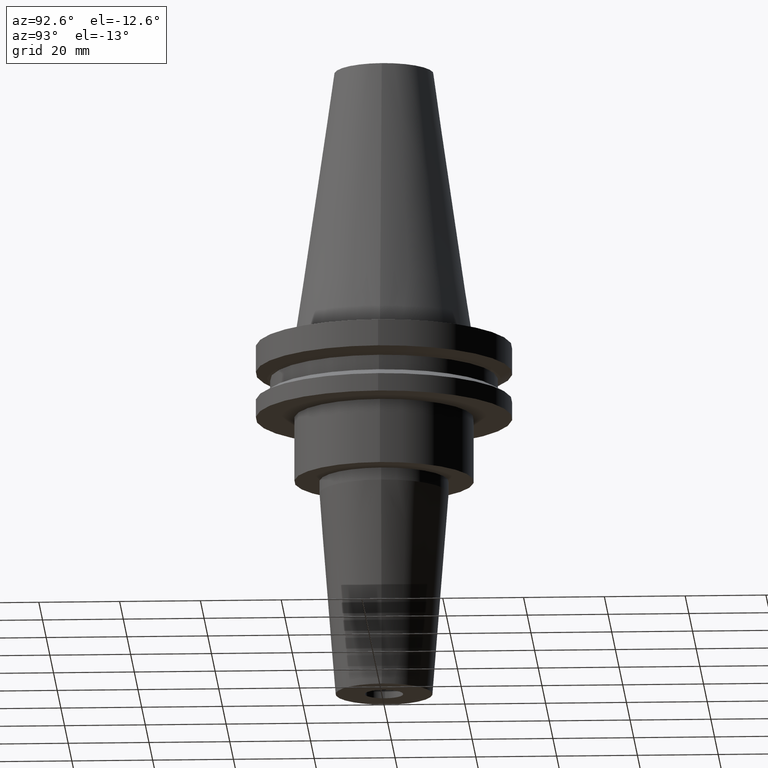
[diagram: clean part render]
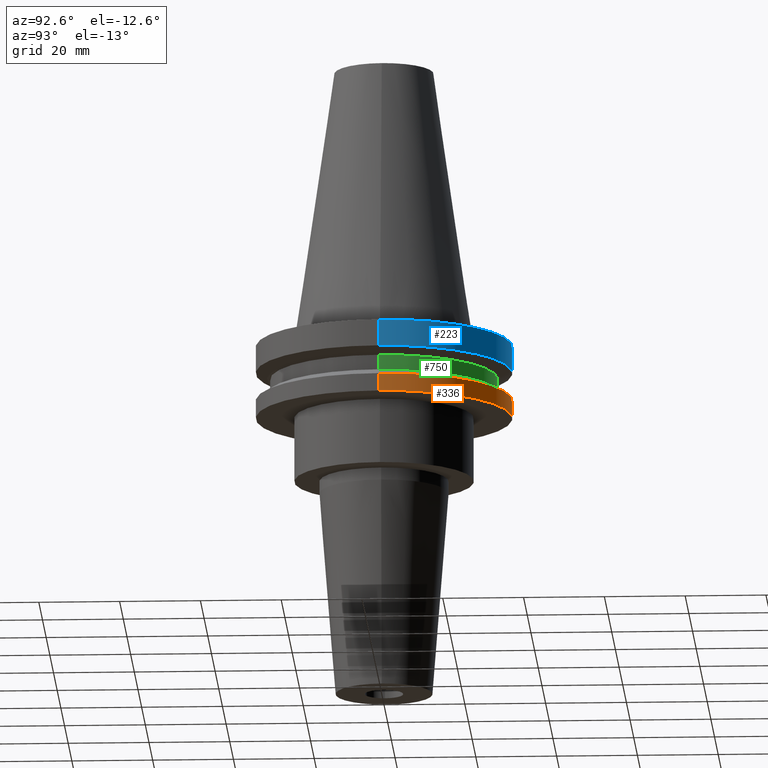
[diagram: same view with three faces highlighted in distinct colors, each labeled with its STEP entity id]
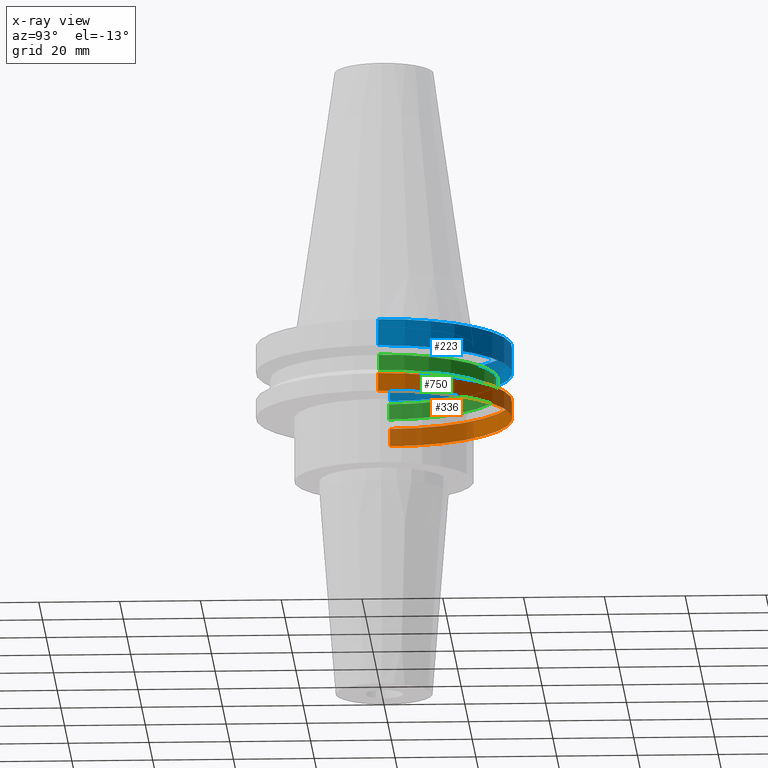
[diagram: x-ray of the same camera — body ghosted, the three highlighted faces saturated]
A machine part, auxiliary view with three faces highlighted in distinct colors.
The next image is the same camera in x-ray (body ghosted, the three faces saturated) — at least one of them is partly hidden behind the body in this view.
Their STEP definitions:

[orange] entity #336 — the highlighted cylindrical surface (partial cylindrical patch) has radius 31.75 mm, axis along (-0, -0, 1).
#41 = EDGE_CURVE ( 'NONE', #229, #67, #177, .T. ) ;
#60 = ORIENTED_EDGE ( 'NONE', *, *, #463, .T. ) ;
#67 = VERTEX_POINT ( 'NONE', #80 ) ;
#74 = CARTESIAN_POINT ( 'NONE',  ( 0.000000000000000000, 0.000000000000000000, -19.04999999999999716 ) ) ;
#80 = CARTESIAN_POINT ( 'NONE',  ( -31.74999999999999289, 3.888253587292845687E-15, -19.04999999999999716 ) ) ;
#83 = LINE ( 'NONE', #618, #279 ) ;
#91 = CARTESIAN_POINT ( 'NONE',  ( 31.75000000000000000, 0.000000000000000000, -14.65472339340266572 ) ) ;
#111 = DIRECTION ( 'NONE',  ( 1.000000000000000000, 0.000000000000000000, 0.000000000000000000 ) ) ;
#136 = EDGE_CURVE ( 'NONE', #845, #581, #727, .T. ) ;
#145 = DIRECTION ( 'NONE',  ( -0.000000000000000000, -0.000000000000000000, 1.000000000000000000 ) ) ;
#167 = CARTESIAN_POINT ( 'NONE',  ( 31.74999999999999289, 0.000000000000000000, -19.04999999999999716 ) ) ;
#168 = ORIENTED_EDGE ( 'NONE', *, *, #41, .T. ) ;
#177 = CIRCLE ( 'NONE', #253, 31.74999999999999289 ) ;
#199 = VECTOR ( 'NONE', #284, 1000.000000000000000 ) ;
#229 = VERTEX_POINT ( 'NONE', #167 ) ;
#253 = AXIS2_PLACEMENT_3D ( 'NONE', #74, #285, #412 ) ;
#279 = VECTOR ( 'NONE', #484, 1000.000000000000000 ) ;
#284 = DIRECTION ( 'NONE',  ( -0.000000000000000000, -0.000000000000000000, 1.000000000000000000 ) ) ;
#285 = DIRECTION ( 'NONE',  ( -0.000000000000000000, -0.000000000000000000, 1.000000000000000000 ) ) ;
#324 = EDGE_LOOP ( 'NONE', ( #168, #60, #810, #329 ) ) ;
#325 = CARTESIAN_POINT ( 'NONE',  ( 0.000000000000000000, 0.000000000000000000, 68.25000000000000000 ) ) ;
#329 = ORIENTED_EDGE ( 'NONE', *, *, #844, .F. ) ;
#336 = ADVANCED_FACE ( 'NONE', ( #395 ), #772, .T. ) ;
#360 = AXIS2_PLACEMENT_3D ( 'NONE', #543, #145, #415 ) ;
#395 = FACE_OUTER_BOUND ( 'NONE', #324, .T. ) ;
#412 = DIRECTION ( 'NONE',  ( 1.000000000000000000, 0.000000000000000000, 0.000000000000000000 ) ) ;
#414 = CARTESIAN_POINT ( 'NONE',  ( -31.75000000000000000, 3.888253587292846476E-15, -14.65472339340266572 ) ) ;
#415 = DIRECTION ( 'NONE',  ( 1.000000000000000000, 0.000000000000000000, 0.000000000000000000 ) ) ;
#463 = EDGE_CURVE ( 'NONE', #67, #581, #724, .T. ) ;
#484 = DIRECTION ( 'NONE',  ( -0.000000000000000000, -0.000000000000000000, 1.000000000000000000 ) ) ;
#543 = CARTESIAN_POINT ( 'NONE',  ( 0.000000000000000000, 0.000000000000000000, -14.65472339340266572 ) ) ;
#581 = VERTEX_POINT ( 'NONE', #414 ) ;
#592 = DIRECTION ( 'NONE',  ( -0.000000000000000000, -0.000000000000000000, 1.000000000000000000 ) ) ;
#595 = CARTESIAN_POINT ( 'NONE',  ( -31.75000000000000000, 3.888253587292846476E-15, 68.25000000000000000 ) ) ;
#618 = CARTESIAN_POINT ( 'NONE',  ( 31.75000000000000000, 0.000000000000000000, 68.25000000000000000 ) ) ;
#642 = AXIS2_PLACEMENT_3D ( 'NONE', #325, #592, #111 ) ;
#724 = LINE ( 'NONE', #595, #199 ) ;
#727 = CIRCLE ( 'NONE', #360, 31.75000000000000000 ) ;
#772 = CYLINDRICAL_SURFACE ( 'NONE', #642, 31.75000000000000000 ) ;
#810 = ORIENTED_EDGE ( 'NONE', *, *, #136, .F. ) ;
#844 = EDGE_CURVE ( 'NONE', #229, #845, #83, .T. ) ;
#845 = VERTEX_POINT ( 'NONE', #91 ) ;

[blue] entity #223 — the highlighted cylindrical surface (partial cylindrical patch) has radius 31.75 mm, axis along (-0, -0, 1).
#12 = CIRCLE ( 'NONE', #123, 31.75000000000000000 ) ;
#23 = FACE_OUTER_BOUND ( 'NONE', #40, .T. ) ;
#40 = EDGE_LOOP ( 'NONE', ( #798, #450, #807, #621 ) ) ;
#42 = AXIS2_PLACEMENT_3D ( 'NONE', #256, #780, #44 ) ;
#44 = DIRECTION ( 'NONE',  ( 1.000000000000000000, 0.000000000000000000, 0.000000000000000000 ) ) ;
#89 = DIRECTION ( 'NONE',  ( -0.000000000000000000, -0.000000000000000000, 1.000000000000000000 ) ) ;
#99 = VERTEX_POINT ( 'NONE', #480 ) ;
#123 = AXIS2_PLACEMENT_3D ( 'NONE', #490, #292, #573 ) ;
#137 = CARTESIAN_POINT ( 'NONE',  ( -31.75000000000000000, 3.888253587292846476E-15, -1.000000000000000888 ) ) ;
#179 = CARTESIAN_POINT ( 'NONE',  ( 31.75000000000000000, 0.000000000000000000, -7.605276606597335842 ) ) ;
#191 = VECTOR ( 'NONE', #200, 1000.000000000000000 ) ;
#200 = DIRECTION ( 'NONE',  ( -0.000000000000000000, -0.000000000000000000, 1.000000000000000000 ) ) ;
#213 = EDGE_CURVE ( 'NONE', #776, #99, #496, .T. ) ;
#223 = ADVANCED_FACE ( 'NONE', ( #23 ), #620, .T. ) ;
#228 = DIRECTION ( 'NONE',  ( 1.000000000000000000, 0.000000000000000000, 0.000000000000000000 ) ) ;
#256 = CARTESIAN_POINT ( 'NONE',  ( 0.000000000000000000, 0.000000000000000000, -7.605276606597335842 ) ) ;
#292 = DIRECTION ( 'NONE',  ( -0.000000000000000000, -0.000000000000000000, 1.000000000000000000 ) ) ;
#332 = CARTESIAN_POINT ( 'NONE',  ( -31.75000000000000000, 3.888253587292846476E-15, 68.25000000000000000 ) ) ;
#359 = VECTOR ( 'NONE', #752, 1000.000000000000000 ) ;
#450 = ORIENTED_EDGE ( 'NONE', *, *, #561, .T. ) ;
#475 = LINE ( 'NONE', #332, #191 ) ;
#480 = CARTESIAN_POINT ( 'NONE',  ( 31.75000000000000000, 0.000000000000000000, -1.000000000000000888 ) ) ;
#490 = CARTESIAN_POINT ( 'NONE',  ( 0.000000000000000000, 0.000000000000000000, -1.000000000000000888 ) ) ;
#496 = LINE ( 'NONE', #813, #359 ) ;
#533 = CARTESIAN_POINT ( 'NONE',  ( -31.75000000000000000, 3.888253587292846476E-15, -7.605276606597335842 ) ) ;
#539 = VERTEX_POINT ( 'NONE', #137 ) ;
#561 = EDGE_CURVE ( 'NONE', #590, #539, #475, .T. ) ;
#573 = DIRECTION ( 'NONE',  ( 1.000000000000000000, 0.000000000000000000, 0.000000000000000000 ) ) ;
#575 = CARTESIAN_POINT ( 'NONE',  ( 0.000000000000000000, 0.000000000000000000, 68.25000000000000000 ) ) ;
#590 = VERTEX_POINT ( 'NONE', #533 ) ;
#620 = CYLINDRICAL_SURFACE ( 'NONE', #825, 31.75000000000000000 ) ;
#621 = ORIENTED_EDGE ( 'NONE', *, *, #213, .F. ) ;
#665 = EDGE_CURVE ( 'NONE', #99, #539, #12, .T. ) ;
#752 = DIRECTION ( 'NONE',  ( -0.000000000000000000, -0.000000000000000000, 1.000000000000000000 ) ) ;
#776 = VERTEX_POINT ( 'NONE', #179 ) ;
#777 = EDGE_CURVE ( 'NONE', #776, #590, #795, .T. ) ;
#780 = DIRECTION ( 'NONE',  ( -0.000000000000000000, -0.000000000000000000, 1.000000000000000000 ) ) ;
#795 = CIRCLE ( 'NONE', #42, 31.75000000000000000 ) ;
#798 = ORIENTED_EDGE ( 'NONE', *, *, #777, .T. ) ;
#807 = ORIENTED_EDGE ( 'NONE', *, *, #665, .F. ) ;
#813 = CARTESIAN_POINT ( 'NONE',  ( 31.75000000000000000, 0.000000000000000000, 68.25000000000000000 ) ) ;
#825 = AXIS2_PLACEMENT_3D ( 'NONE', #575, #89, #228 ) ;

[green] entity #750 — the highlighted cylindrical surface (partial cylindrical patch) has radius 28.18 mm, axis along (-0, -0, 1).
#77 = CARTESIAN_POINT ( 'NONE',  ( -28.17999999999999972, 3.451054679997241634E-15, -9.204999999999991189 ) ) ;
#110 = CIRCLE ( 'NONE', #164, 28.17999999999999972 ) ;
#115 = CARTESIAN_POINT ( 'NONE',  ( 28.17999999999999972, 0.000000000000000000, -13.05499999999999794 ) ) ;
#121 = VERTEX_POINT ( 'NONE', #77 ) ;
#129 = CARTESIAN_POINT ( 'NONE',  ( 0.000000000000000000, 0.000000000000000000, -9.204999999999991189 ) ) ;
#142 = VERTEX_POINT ( 'NONE', #681 ) ;
#144 = CARTESIAN_POINT ( 'NONE',  ( 28.17999999999999972, 0.000000000000000000, 68.25000000000000000 ) ) ;
#164 = AXIS2_PLACEMENT_3D ( 'NONE', #744, #440, #628 ) ;
#166 = CARTESIAN_POINT ( 'NONE',  ( -28.17999999999999972, 3.451054679997241634E-15, -13.05499999999999794 ) ) ;
#195 = LINE ( 'NONE', #144, #320 ) ;
#269 = DIRECTION ( 'NONE',  ( 1.000000000000000000, 0.000000000000000000, 0.000000000000000000 ) ) ;
#320 = VECTOR ( 'NONE', #462, 1000.000000000000000 ) ;
#349 = FACE_OUTER_BOUND ( 'NONE', #690, .T. ) ;
#371 = VERTEX_POINT ( 'NONE', #115 ) ;
#378 = LINE ( 'NONE', #771, #664 ) ;
#382 = AXIS2_PLACEMENT_3D ( 'NONE', #553, #808, #485 ) ;
#399 = ORIENTED_EDGE ( 'NONE', *, *, #759, .T. ) ;
#440 = DIRECTION ( 'NONE',  ( -0.000000000000000000, -0.000000000000000000, 1.000000000000000000 ) ) ;
#462 = DIRECTION ( 'NONE',  ( -0.000000000000000000, -0.000000000000000000, 1.000000000000000000 ) ) ;
#485 = DIRECTION ( 'NONE',  ( 1.000000000000000000, 0.000000000000000000, 0.000000000000000000 ) ) ;
#501 = AXIS2_PLACEMENT_3D ( 'NONE', #129, #598, #269 ) ;
#520 = ORIENTED_EDGE ( 'NONE', *, *, #587, .F. ) ;
#553 = CARTESIAN_POINT ( 'NONE',  ( 0.000000000000000000, 0.000000000000000000, 68.25000000000000000 ) ) ;
#576 = CIRCLE ( 'NONE', #501, 28.17999999999999972 ) ;
#578 = EDGE_CURVE ( 'NONE', #371, #142, #195, .T. ) ;
#587 = EDGE_CURVE ( 'NONE', #142, #121, #576, .T. ) ;
#591 = DIRECTION ( 'NONE',  ( -0.000000000000000000, -0.000000000000000000, 1.000000000000000000 ) ) ;
#598 = DIRECTION ( 'NONE',  ( -0.000000000000000000, -0.000000000000000000, 1.000000000000000000 ) ) ;
#615 = CYLINDRICAL_SURFACE ( 'NONE', #382, 28.17999999999999972 ) ;
#617 = ORIENTED_EDGE ( 'NONE', *, *, #578, .F. ) ;
#628 = DIRECTION ( 'NONE',  ( 1.000000000000000000, 0.000000000000000000, 0.000000000000000000 ) ) ;
#635 = EDGE_CURVE ( 'NONE', #371, #711, #110, .T. ) ;
#664 = VECTOR ( 'NONE', #591, 1000.000000000000000 ) ;
#681 = CARTESIAN_POINT ( 'NONE',  ( 28.17999999999999972, 0.000000000000000000, -9.204999999999991189 ) ) ;
#690 = EDGE_LOOP ( 'NONE', ( #696, #399, #520, #617 ) ) ;
#696 = ORIENTED_EDGE ( 'NONE', *, *, #635, .T. ) ;
#711 = VERTEX_POINT ( 'NONE', #166 ) ;
#744 = CARTESIAN_POINT ( 'NONE',  ( 0.000000000000000000, 0.000000000000000000, -13.05499999999999794 ) ) ;
#750 = ADVANCED_FACE ( 'NONE', ( #349 ), #615, .T. ) ;
#759 = EDGE_CURVE ( 'NONE', #711, #121, #378, .T. ) ;
#771 = CARTESIAN_POINT ( 'NONE',  ( -28.17999999999999972, 3.451054679997241634E-15, 68.25000000000000000 ) ) ;
#808 = DIRECTION ( 'NONE',  ( -0.000000000000000000, -0.000000000000000000, 1.000000000000000000 ) ) ;